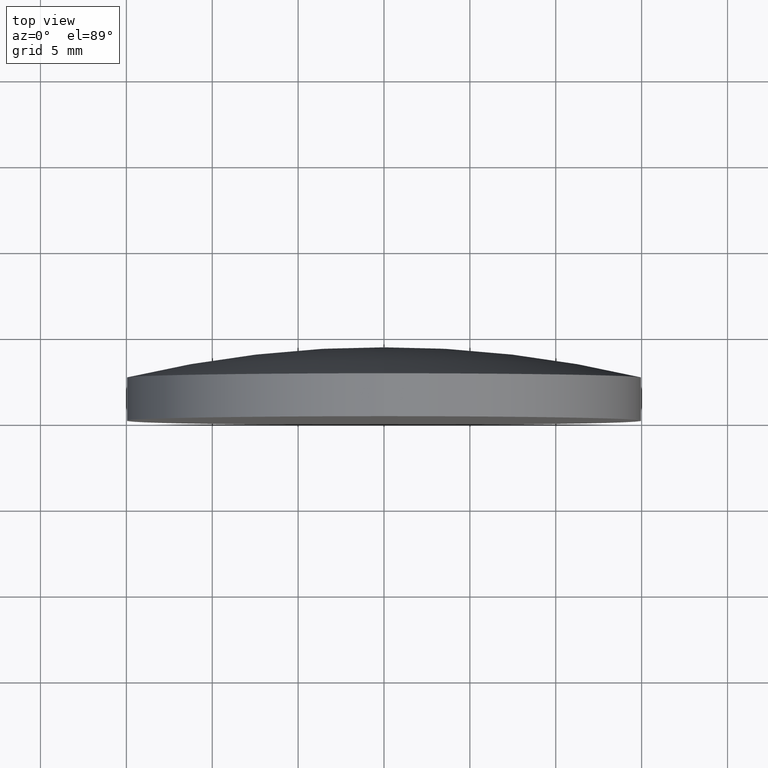
[diagram: clean part render]
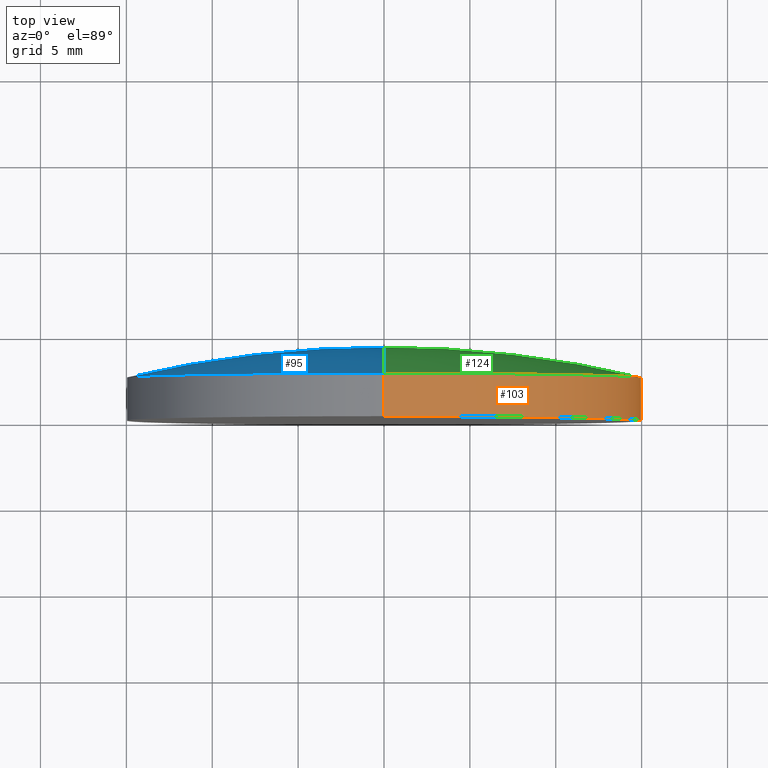
[diagram: same view with three faces highlighted in distinct colors, each labeled with its STEP entity id]
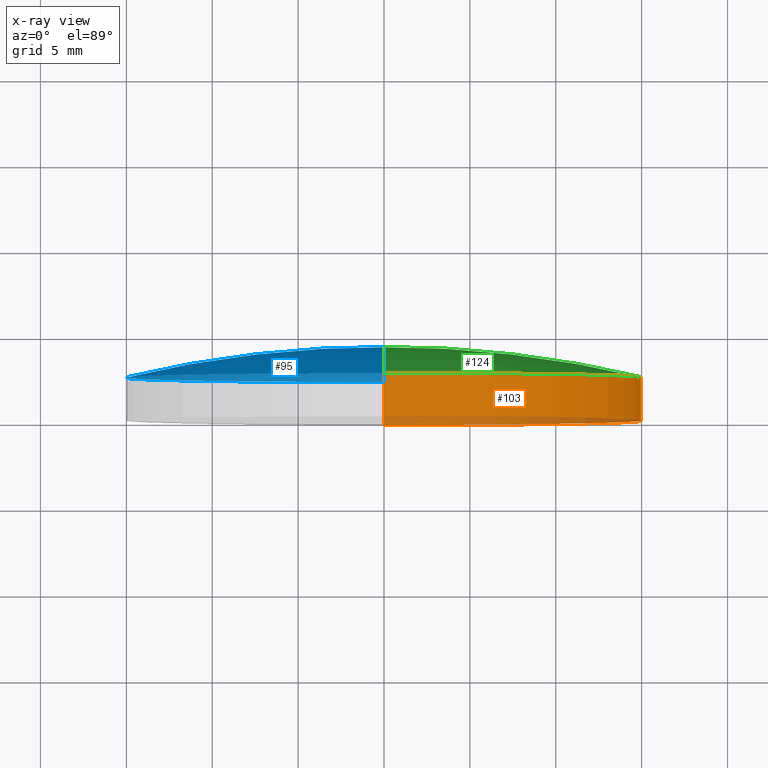
[diagram: x-ray of the same camera — body ghosted, the three highlighted faces saturated]
A machine part, top view with three faces highlighted in distinct colors.
The next image is the same camera in x-ray (body ghosted, the three faces saturated) — at least one of them is partly hidden behind the body in this view.
Their STEP definitions:

[orange] entity #103 — the highlighted cylindrical surface (partial cylindrical patch) has radius 15 mm, axis along (-0, 1, -0).
#10 = CARTESIAN_POINT ( 'NONE',  ( 1.836970198721029589E-15, -1.734723475976807094E-15, -15.00000000000000000 ) ) ;
#12 = CARTESIAN_POINT ( 'NONE',  ( 0.000000000000000000, 4.269999999999999574, 0.000000000000000000 ) ) ;
#14 = CIRCLE ( 'NONE', #200, 15.00000000000000000 ) ;
#15 = EDGE_CURVE ( 'NONE', #75, #39, #90, .T. ) ;
#18 = CIRCLE ( 'NONE', #170, 15.00000000000000000 ) ;
#23 = CARTESIAN_POINT ( 'NONE',  ( 0.000000000000000000, 2.499999999999998224, 0.000000000000000000 ) ) ;
#28 = CARTESIAN_POINT ( 'NONE',  ( 0.000000000000000000, -1.734723475976807094E-15, 15.00000000000000000 ) ) ;
#35 = EDGE_CURVE ( 'NONE', #176, #39, #14, .T. ) ;
#39 = VERTEX_POINT ( 'NONE', #193 ) ;
#41 = DIRECTION ( 'NONE',  ( -0.000000000000000000, 1.000000000000000000, -0.000000000000000000 ) ) ;
#48 = EDGE_CURVE ( 'NONE', #148, #75, #18, .T. ) ;
#50 = DIRECTION ( 'NONE',  ( -0.000000000000000000, 1.000000000000000000, -0.000000000000000000 ) ) ;
#56 = DIRECTION ( 'NONE',  ( -0.000000000000000000, 1.000000000000000000, -0.000000000000000000 ) ) ;
#63 = LINE ( 'NONE', #123, #180 ) ;
#69 = VECTOR ( 'NONE', #195, 1000.000000000000000 ) ;
#75 = VERTEX_POINT ( 'NONE', #10 ) ;
#76 = CARTESIAN_POINT ( 'NONE',  ( 0.000000000000000000, -1.734723475976807094E-15, 0.000000000000000000 ) ) ;
#87 = FACE_OUTER_BOUND ( 'NONE', #131, .T. ) ;
#90 = LINE ( 'NONE', #122, #69 ) ;
#92 = DIRECTION ( 'NONE',  ( 0.000000000000000000, 0.000000000000000000, 1.000000000000000000 ) ) ;
#103 = ADVANCED_FACE ( 'NONE', ( #87 ), #161, .T. ) ;
#104 = ORIENTED_EDGE ( 'NONE', *, *, #35, .F. ) ;
#119 = ORIENTED_EDGE ( 'NONE', *, *, #15, .T. ) ;
#122 = CARTESIAN_POINT ( 'NONE',  ( 1.836970198721029589E-15, 4.269999999999999574, -15.00000000000000000 ) ) ;
#123 = CARTESIAN_POINT ( 'NONE',  ( 0.000000000000000000, 4.269999999999999574, 15.00000000000000000 ) ) ;
#131 = EDGE_LOOP ( 'NONE', ( #197, #119, #104, #143 ) ) ;
#133 = DIRECTION ( 'NONE',  ( 0.000000000000000000, 0.000000000000000000, 1.000000000000000000 ) ) ;
#143 = ORIENTED_EDGE ( 'NONE', *, *, #184, .F. ) ;
#148 = VERTEX_POINT ( 'NONE', #28 ) ;
#161 = CYLINDRICAL_SURFACE ( 'NONE', #167, 15.00000000000000000 ) ;
#164 = DIRECTION ( 'NONE',  ( 0.000000000000000000, 0.000000000000000000, 1.000000000000000000 ) ) ;
#167 = AXIS2_PLACEMENT_3D ( 'NONE', #12, #41, #92 ) ;
#170 = AXIS2_PLACEMENT_3D ( 'NONE', #76, #56, #164 ) ;
#176 = VERTEX_POINT ( 'NONE', #199 ) ;
#180 = VECTOR ( 'NONE', #50, 1000.000000000000000 ) ;
#184 = EDGE_CURVE ( 'NONE', #148, #176, #63, .T. ) ;
#193 = CARTESIAN_POINT ( 'NONE',  ( 1.836970198721029589E-15, 2.500000000000000444, -15.00000000000000000 ) ) ;
#194 = DIRECTION ( 'NONE',  ( -0.000000000000000000, 1.000000000000000000, -0.000000000000000000 ) ) ;
#195 = DIRECTION ( 'NONE',  ( -0.000000000000000000, 1.000000000000000000, -0.000000000000000000 ) ) ;
#197 = ORIENTED_EDGE ( 'NONE', *, *, #48, .T. ) ;
#199 = CARTESIAN_POINT ( 'NONE',  ( 0.000000000000000000, 2.500000000000000444, 15.00000000000000000 ) ) ;
#200 = AXIS2_PLACEMENT_3D ( 'NONE', #23, #194, #133 ) ;

[blue] entity #95 — the highlighted toroidal blend (fillet) surface has major radius 0.0125 mm and minor (blend) radius 64.55 mm.
#7 = VERTEX_POINT ( 'NONE', #175 ) ;
#9 = DIRECTION ( 'NONE',  ( 0.000000000000000000, 0.000000000000000000, 1.000000000000000000 ) ) ;
#21 = CARTESIAN_POINT ( 'NONE',  ( 0.000000000000000000, -60.27999879552782403, -0.01246985787228902659 ) ) ;
#22 = TOROIDAL_SURFACE ( 'NONE', #138, -0.01246985787228902659, 64.54999999999999716 ) ;
#25 = FACE_OUTER_BOUND ( 'NONE', #147, .T. ) ;
#31 = CIRCLE ( 'NONE', #53, 64.54999999999999716 ) ;
#38 = EDGE_CURVE ( 'NONE', #39, #7, #105, .T. ) ;
#39 = VERTEX_POINT ( 'NONE', #193 ) ;
#43 = DIRECTION ( 'NONE',  ( -0.000000000000000000, 1.000000000000000000, -0.000000000000000000 ) ) ;
#44 = AXIS2_PLACEMENT_3D ( 'NONE', #150, #80, #135 ) ;
#47 = DIRECTION ( 'NONE',  ( 1.000000000000000000, 0.000000000000000000, 1.224646799147353207E-16 ) ) ;
#53 = AXIS2_PLACEMENT_3D ( 'NONE', #21, #145, #9 ) ;
#61 = CARTESIAN_POINT ( 'NONE',  ( -1.527117152912117945E-18, -60.27999879552782403, 0.01246985787228902659 ) ) ;
#62 = DIRECTION ( 'NONE',  ( 0.000000000000000000, 0.000000000000000000, 1.000000000000000000 ) ) ;
#80 = DIRECTION ( 'NONE',  ( -0.000000000000000000, 1.000000000000000000, -0.000000000000000000 ) ) ;
#82 = CIRCLE ( 'NONE', #44, 15.00000000000000000 ) ;
#95 = ADVANCED_FACE ( 'NONE', ( #25 ), #22, .T. ) ;
#105 = CIRCLE ( 'NONE', #196, 64.54999999999999716 ) ;
#112 = EDGE_CURVE ( 'NONE', #176, #7, #31, .T. ) ;
#132 = ORIENTED_EDGE ( 'NONE', *, *, #38, .F. ) ;
#134 = DIRECTION ( 'NONE',  ( 1.224646799147352961E-16, 0.000000000000000000, -1.000000000000000000 ) ) ;
#135 = DIRECTION ( 'NONE',  ( 0.000000000000000000, 0.000000000000000000, 1.000000000000000000 ) ) ;
#138 = AXIS2_PLACEMENT_3D ( 'NONE', #163, #43, #62 ) ;
#145 = DIRECTION ( 'NONE',  ( -1.000000000000000000, 0.000000000000000000, 0.000000000000000000 ) ) ;
#147 = EDGE_LOOP ( 'NONE', ( #132, #183, #149 ) ) ;
#149 = ORIENTED_EDGE ( 'NONE', *, *, #112, .T. ) ;
#150 = CARTESIAN_POINT ( 'NONE',  ( 0.000000000000000000, 2.499999999999998224, 0.000000000000000000 ) ) ;
#158 = EDGE_CURVE ( 'NONE', #39, #176, #82, .T. ) ;
#163 = CARTESIAN_POINT ( 'NONE',  ( 0.000000000000000000, -60.27999879552782403, 0.000000000000000000 ) ) ;
#175 = CARTESIAN_POINT ( 'NONE',  ( 0.000000000000000000, 4.269999999999999574, 0.000000000000000000 ) ) ;
#176 = VERTEX_POINT ( 'NONE', #199 ) ;
#183 = ORIENTED_EDGE ( 'NONE', *, *, #158, .T. ) ;
#193 = CARTESIAN_POINT ( 'NONE',  ( 1.836970198721029589E-15, 2.500000000000000444, -15.00000000000000000 ) ) ;
#196 = AXIS2_PLACEMENT_3D ( 'NONE', #61, #47, #134 ) ;
#199 = CARTESIAN_POINT ( 'NONE',  ( 0.000000000000000000, 2.500000000000000444, 15.00000000000000000 ) ) ;

[green] entity #124 — the highlighted toroidal blend (fillet) surface has major radius 0.0125 mm and minor (blend) radius 64.55 mm.
#7 = VERTEX_POINT ( 'NONE', #175 ) ;
#9 = DIRECTION ( 'NONE',  ( 0.000000000000000000, 0.000000000000000000, 1.000000000000000000 ) ) ;
#11 = EDGE_LOOP ( 'NONE', ( #182, #57, #24 ) ) ;
#14 = CIRCLE ( 'NONE', #200, 15.00000000000000000 ) ;
#21 = CARTESIAN_POINT ( 'NONE',  ( 0.000000000000000000, -60.27999879552782403, -0.01246985787228902659 ) ) ;
#23 = CARTESIAN_POINT ( 'NONE',  ( 0.000000000000000000, 2.499999999999998224, 0.000000000000000000 ) ) ;
#24 = ORIENTED_EDGE ( 'NONE', *, *, #112, .F. ) ;
#31 = CIRCLE ( 'NONE', #53, 64.54999999999999716 ) ;
#35 = EDGE_CURVE ( 'NONE', #176, #39, #14, .T. ) ;
#38 = EDGE_CURVE ( 'NONE', #39, #7, #105, .T. ) ;
#39 = VERTEX_POINT ( 'NONE', #193 ) ;
#47 = DIRECTION ( 'NONE',  ( 1.000000000000000000, 0.000000000000000000, 1.224646799147353207E-16 ) ) ;
#53 = AXIS2_PLACEMENT_3D ( 'NONE', #21, #145, #9 ) ;
#57 = ORIENTED_EDGE ( 'NONE', *, *, #38, .T. ) ;
#61 = CARTESIAN_POINT ( 'NONE',  ( -1.527117152912117945E-18, -60.27999879552782403, 0.01246985787228902659 ) ) ;
#73 = FACE_OUTER_BOUND ( 'NONE', #11, .T. ) ;
#77 = TOROIDAL_SURFACE ( 'NONE', #113, -0.01246985787228902659, 64.54999999999999716 ) ;
#91 = DIRECTION ( 'NONE',  ( 0.000000000000000000, 0.000000000000000000, 1.000000000000000000 ) ) ;
#105 = CIRCLE ( 'NONE', #196, 64.54999999999999716 ) ;
#106 = CARTESIAN_POINT ( 'NONE',  ( 0.000000000000000000, -60.27999879552782403, 0.000000000000000000 ) ) ;
#112 = EDGE_CURVE ( 'NONE', #176, #7, #31, .T. ) ;
#113 = AXIS2_PLACEMENT_3D ( 'NONE', #106, #162, #91 ) ;
#124 = ADVANCED_FACE ( 'NONE', ( #73 ), #77, .T. ) ;
#133 = DIRECTION ( 'NONE',  ( 0.000000000000000000, 0.000000000000000000, 1.000000000000000000 ) ) ;
#134 = DIRECTION ( 'NONE',  ( 1.224646799147352961E-16, 0.000000000000000000, -1.000000000000000000 ) ) ;
#145 = DIRECTION ( 'NONE',  ( -1.000000000000000000, 0.000000000000000000, 0.000000000000000000 ) ) ;
#162 = DIRECTION ( 'NONE',  ( -0.000000000000000000, 1.000000000000000000, -0.000000000000000000 ) ) ;
#175 = CARTESIAN_POINT ( 'NONE',  ( 0.000000000000000000, 4.269999999999999574, 0.000000000000000000 ) ) ;
#176 = VERTEX_POINT ( 'NONE', #199 ) ;
#182 = ORIENTED_EDGE ( 'NONE', *, *, #35, .T. ) ;
#193 = CARTESIAN_POINT ( 'NONE',  ( 1.836970198721029589E-15, 2.500000000000000444, -15.00000000000000000 ) ) ;
#194 = DIRECTION ( 'NONE',  ( -0.000000000000000000, 1.000000000000000000, -0.000000000000000000 ) ) ;
#196 = AXIS2_PLACEMENT_3D ( 'NONE', #61, #47, #134 ) ;
#199 = CARTESIAN_POINT ( 'NONE',  ( 0.000000000000000000, 2.500000000000000444, 15.00000000000000000 ) ) ;
#200 = AXIS2_PLACEMENT_3D ( 'NONE', #23, #194, #133 ) ;